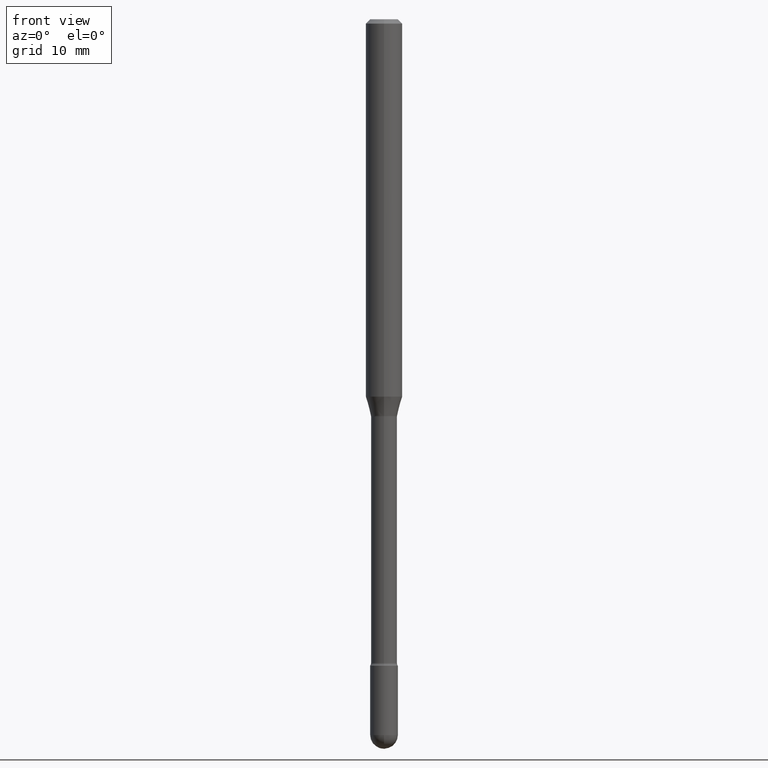
[diagram: clean part render]
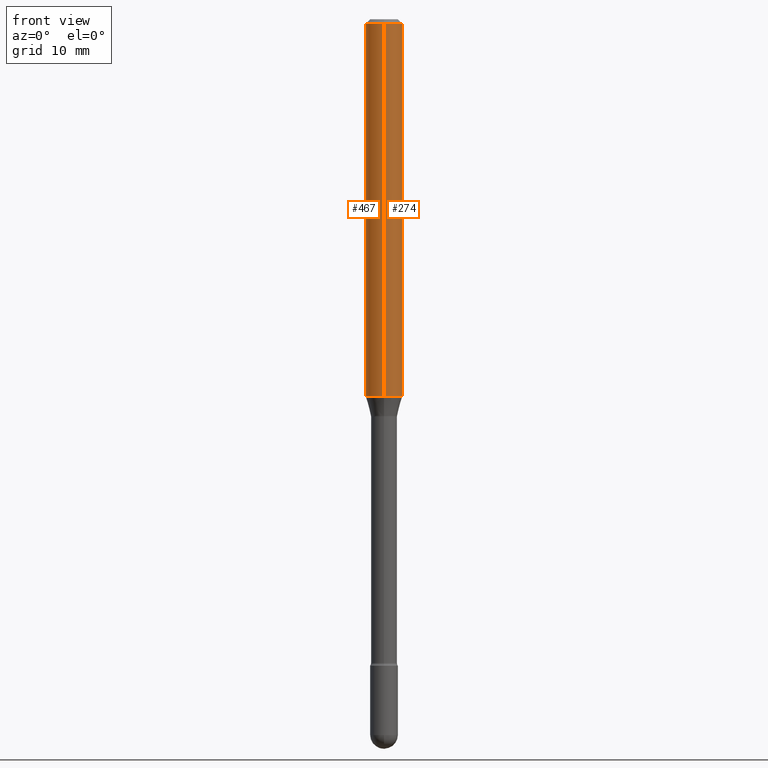
[diagram: same view with one multi-face feature highlighted, each face labeled with its STEP entity id]
A machine part, front view. The highlighted faces form ONE feature: a constant-radius fillet chain: 2 tangent blend faces with common blend radius 1.5875 mm. The faces share edges in the B-rep.
Their STEP definitions:
[1] entity #274 (Cylinder):
#3 = VERTEX_POINT ( 'NONE', #565 ) ;
#18 = CARTESIAN_POINT ( 'NONE',  ( -4.364351673553597698E-16, -0.06250000000000448253, -1.293382893084895402 ) ) ;
#30 = ORIENTED_EDGE ( 'NONE', *, *, #166, .T. ) ;
#33 = FACE_OUTER_BOUND ( 'NONE', #258, .T. ) ;
#41 = ORIENTED_EDGE ( 'NONE', *, *, #427, .F. ) ;
#44 = VECTOR ( 'NONE', #518, 39.37007874015748143 ) ;
#75 = CARTESIAN_POINT ( 'NONE',  ( 4.440892098500943678E-16, 0.06249999999999995143, -0.01500000000000030129 ) ) ;
#80 = DIRECTION ( 'NONE',  ( -2.445472854051523017E-29, 3.491475542068089682E-15, 1.000000000000000000 ) ) ;
#93 = CARTESIAN_POINT ( 'NONE',  ( 3.668209281077304879E-31, -5.237213313102163933E-17, -0.01500000000000008271 ) ) ;
#126 = CARTESIAN_POINT ( 'NONE',  ( 4.440892098500943678E-16, 0.06249999999999551747, -1.293382893084896068 ) ) ;
#130 = VECTOR ( 'NONE', #281, 39.37007874015748143 ) ;
#135 = EDGE_CURVE ( 'NONE', #145, #3, #371, .T. ) ;
#145 = VERTEX_POINT ( 'NONE', #18 ) ;
#159 = DIRECTION ( 'NONE',  ( -2.445472854051523017E-29, 3.491475542068089682E-15, 1.000000000000000000 ) ) ;
#166 = EDGE_CURVE ( 'NONE', #145, #318, #441, .T. ) ;
#175 = DIRECTION ( 'NONE',  ( -6.982962677686265922E-15, -1.000000000000000000, 3.491475542068089288E-15 ) ) ;
#253 = CYLINDRICAL_SURFACE ( 'NONE', #496, 0.06250000000000000000 ) ;
#258 = EDGE_LOOP ( 'NONE', ( #30, #295, #41, #304 ) ) ;
#262 = CARTESIAN_POINT ( 'NONE',  ( 4.440892098500625669E-16, 0.06250000000000000000, 2.598561775119904334E-16 ) ) ;
#271 = CIRCLE ( 'NONE', #545, 0.06250000000000000000 ) ;
#274 = ADVANCED_FACE ( 'NONE', ( #33 ), #253, .T. ) ;
#275 = VERTEX_POINT ( 'NONE', #75 ) ;
#281 = DIRECTION ( 'NONE',  ( -2.445472854051522737E-29, 3.491475542068090077E-15, 1.000000000000000000 ) ) ;
#295 = ORIENTED_EDGE ( 'NONE', *, *, #403, .T. ) ;
#304 = ORIENTED_EDGE ( 'NONE', *, *, #135, .F. ) ;
#318 = VERTEX_POINT ( 'NONE', #126 ) ;
#345 = CARTESIAN_POINT ( 'NONE',  ( -1.169113584055446105E-44, 1.669184350826100908E-30, 4.780733988912460139E-16 ) ) ;
#371 = LINE ( 'NONE', #419, #130 ) ;
#378 = DIRECTION ( 'NONE',  ( -2.445472854051523017E-29, 3.491475542068089682E-15, 1.000000000000000000 ) ) ;
#380 = CARTESIAN_POINT ( 'NONE',  ( 3.162932754933736035E-29, -4.515814737735180581E-15, -1.293382893084895846 ) ) ;
#403 = EDGE_CURVE ( 'NONE', #318, #275, #434, .T. ) ;
#419 = CARTESIAN_POINT ( 'NONE',  ( -4.364351673553916201E-16, -0.06250000000000000000, 6.962906202705015944E-16 ) ) ;
#427 = EDGE_CURVE ( 'NONE', #3, #275, #271, .T. ) ;
#434 = LINE ( 'NONE', #262, #44 ) ;
#441 = CIRCLE ( 'NONE', #533, 0.06250000000000000000 ) ;
#454 = DIRECTION ( 'NONE',  ( -6.982962677686265922E-15, -1.000000000000000000, 4.370956789862821150E-15 ) ) ;
#496 = AXIS2_PLACEMENT_3D ( 'NONE', #345, #159, #175 ) ;
#518 = DIRECTION ( 'NONE',  ( -2.445472854051522737E-29, 3.491475542068090077E-15, 1.000000000000000000 ) ) ;
#533 = AXIS2_PLACEMENT_3D ( 'NONE', #380, #378, #454 ) ;
#545 = AXIS2_PLACEMENT_3D ( 'NONE', #93, #80, #555 ) ;
#555 = DIRECTION ( 'NONE',  ( -6.982962677686265922E-15, -1.000000000000000000, 3.483106191921935554E-15 ) ) ;
#565 = CARTESIAN_POINT ( 'NONE',  ( -4.364351673553912750E-16, -0.06250000000000005551, -0.01499999999999986587 ) ) ;
[2] entity #467 (Cylinder):
#3 = VERTEX_POINT ( 'NONE', #565 ) ;
#14 = DIRECTION ( 'NONE',  ( -2.445472854051523017E-29, 3.491475542068089682E-15, 1.000000000000000000 ) ) ;
#18 = CARTESIAN_POINT ( 'NONE',  ( -4.364351673553597698E-16, -0.06250000000000448253, -1.293382893084895402 ) ) ;
#37 = DIRECTION ( 'NONE',  ( -6.982962677686265922E-15, -1.000000000000000000, 3.491475542068089288E-15 ) ) ;
#44 = VECTOR ( 'NONE', #518, 39.37007874015748143 ) ;
#46 = AXIS2_PLACEMENT_3D ( 'NONE', #487, #322, #37 ) ;
#48 = EDGE_CURVE ( 'NONE', #318, #145, #356, .T. ) ;
#75 = CARTESIAN_POINT ( 'NONE',  ( 4.440892098500943678E-16, 0.06249999999999995143, -0.01500000000000030129 ) ) ;
#96 = CARTESIAN_POINT ( 'NONE',  ( 3.668209281077304879E-31, -5.237213313102163933E-17, -0.01500000000000008271 ) ) ;
#126 = CARTESIAN_POINT ( 'NONE',  ( 4.440892098500943678E-16, 0.06249999999999551747, -1.293382893084896068 ) ) ;
#130 = VECTOR ( 'NONE', #281, 39.37007874015748143 ) ;
#135 = EDGE_CURVE ( 'NONE', #145, #3, #371, .T. ) ;
#141 = CIRCLE ( 'NONE', #521, 0.06250000000000000000 ) ;
#145 = VERTEX_POINT ( 'NONE', #18 ) ;
#150 = DIRECTION ( 'NONE',  ( -6.982962677686265922E-15, -1.000000000000000000, 3.483106191921935554E-15 ) ) ;
#154 = EDGE_CURVE ( 'NONE', #275, #3, #141, .T. ) ;
#206 = ORIENTED_EDGE ( 'NONE', *, *, #403, .F. ) ;
#217 = CYLINDRICAL_SURFACE ( 'NONE', #46, 0.06250000000000000000 ) ;
#220 = ORIENTED_EDGE ( 'NONE', *, *, #154, .F. ) ;
#262 = CARTESIAN_POINT ( 'NONE',  ( 4.440892098500625669E-16, 0.06250000000000000000, 2.598561775119904334E-16 ) ) ;
#275 = VERTEX_POINT ( 'NONE', #75 ) ;
#281 = DIRECTION ( 'NONE',  ( -2.445472854051522737E-29, 3.491475542068090077E-15, 1.000000000000000000 ) ) ;
#282 = ORIENTED_EDGE ( 'NONE', *, *, #48, .T. ) ;
#314 = FACE_OUTER_BOUND ( 'NONE', #525, .T. ) ;
#318 = VERTEX_POINT ( 'NONE', #126 ) ;
#322 = DIRECTION ( 'NONE',  ( -2.445472854051523017E-29, 3.491475542068089682E-15, 1.000000000000000000 ) ) ;
#346 = ORIENTED_EDGE ( 'NONE', *, *, #135, .T. ) ;
#356 = CIRCLE ( 'NONE', #433, 0.06250000000000000000 ) ;
#371 = LINE ( 'NONE', #419, #130 ) ;
#373 = DIRECTION ( 'NONE',  ( -2.445472854051523017E-29, 3.491475542068089682E-15, 1.000000000000000000 ) ) ;
#375 = DIRECTION ( 'NONE',  ( -6.982962677686265922E-15, -1.000000000000000000, 4.370956789862821150E-15 ) ) ;
#403 = EDGE_CURVE ( 'NONE', #318, #275, #434, .T. ) ;
#419 = CARTESIAN_POINT ( 'NONE',  ( -4.364351673553916201E-16, -0.06250000000000000000, 6.962906202705015944E-16 ) ) ;
#433 = AXIS2_PLACEMENT_3D ( 'NONE', #542, #14, #375 ) ;
#434 = LINE ( 'NONE', #262, #44 ) ;
#467 = ADVANCED_FACE ( 'NONE', ( #314 ), #217, .T. ) ;
#487 = CARTESIAN_POINT ( 'NONE',  ( -1.169113584055446105E-44, 1.669184350826100908E-30, 4.780733988912460139E-16 ) ) ;
#518 = DIRECTION ( 'NONE',  ( -2.445472854051522737E-29, 3.491475542068090077E-15, 1.000000000000000000 ) ) ;
#521 = AXIS2_PLACEMENT_3D ( 'NONE', #96, #373, #150 ) ;
#525 = EDGE_LOOP ( 'NONE', ( #206, #282, #346, #220 ) ) ;
#542 = CARTESIAN_POINT ( 'NONE',  ( 3.162932754933736035E-29, -4.515814737735180581E-15, -1.293382893084895846 ) ) ;
#565 = CARTESIAN_POINT ( 'NONE',  ( -4.364351673553912750E-16, -0.06250000000000005551, -0.01499999999999986587 ) ) ;